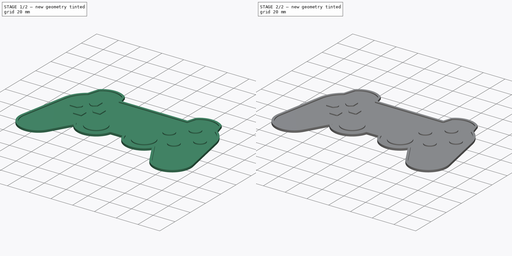
[diagram: build sequence overview — one tinted view per stage of 2, left to right]
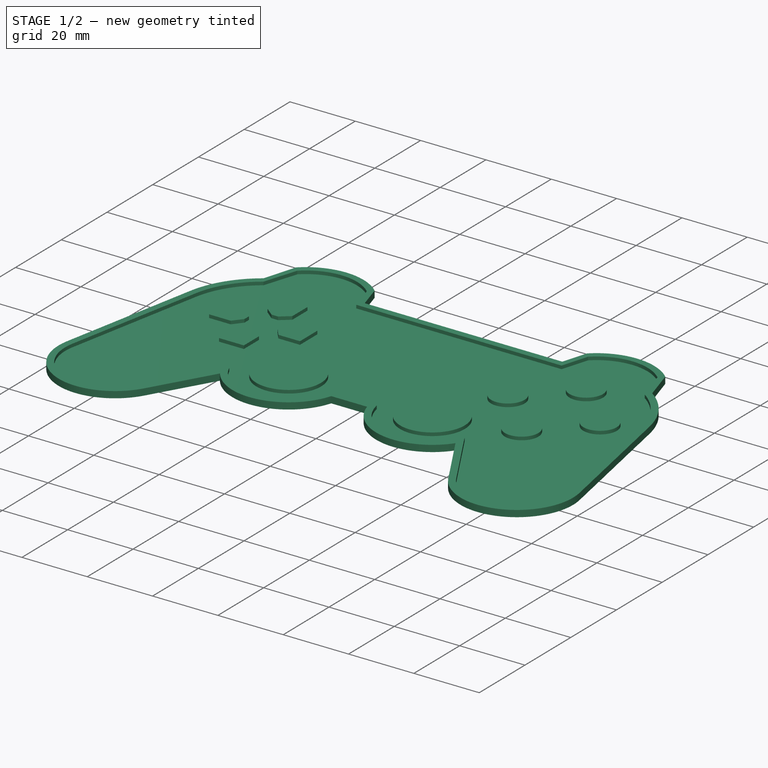
[diagram: stage 1 of 2 — iso view after this stage's code; geometry added in this stage tinted green]
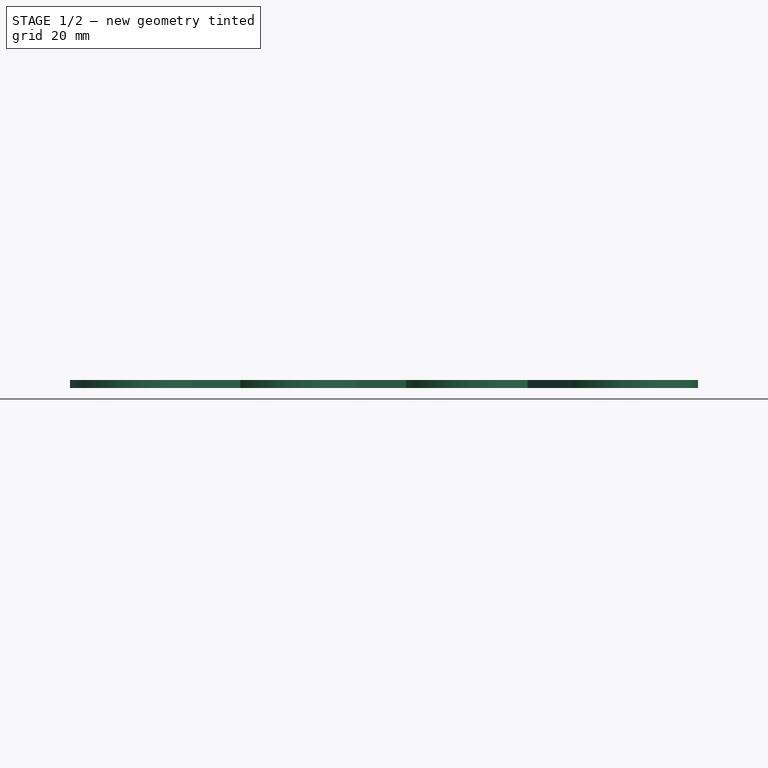
[diagram: stage 1 of 2 — front view after this stage's code; geometry added in this stage tinted green]
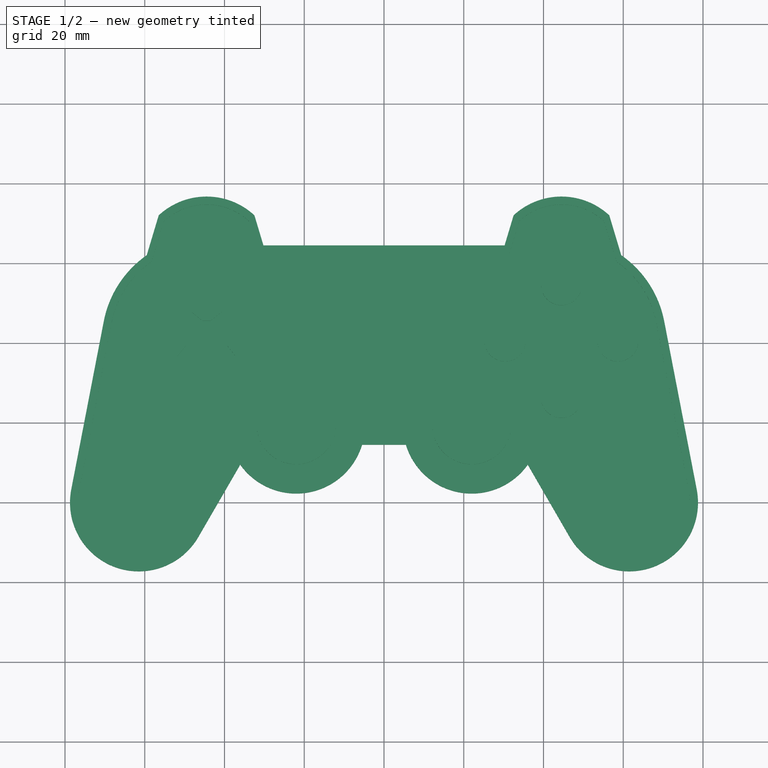
[diagram: stage 1 of 2 — top view after this stage's code; geometry added in this stage tinted green]
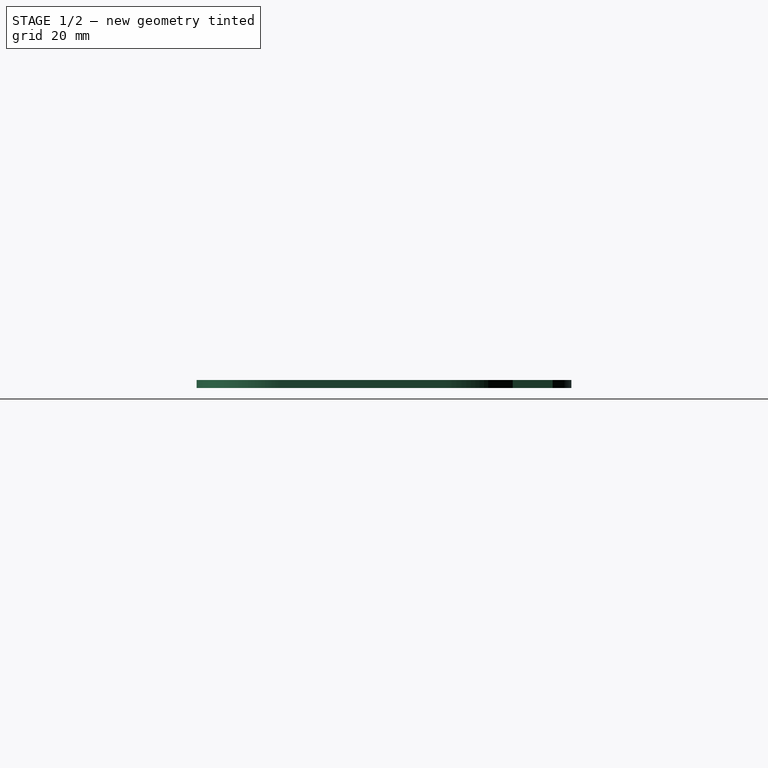
[diagram: stage 1 of 2 — right view after this stage's code; geometry added in this stage tinted green]
FCSTD DOCUMENT  (FreeCAD 0.20R29177 +426 (Git))
Label: DualShock Icon
License: All rights reserved
LicenseURL: http://en.wikipedia.org/wiki/All_rights_reserved
objects: Sketcher::SketchObject×2, PartDesign::Pad×2, PartDesign::Fillet×1, PartDesign::Body×1
note: 9 computed .brp shape members not serialized (recipe doc carries the construction recipe); baked Part::Feature solids carry a one-line shape summary decoded from their .brp

FEATURE [Sketcher::SketchObject] Sketch
  FullyConstrained = true
  MapMode = 5
  Support = -> [XY_Plane]
  sketch-geometry (42):
    g0: Circle CenterX=-61.5 CenterY=0 CenterZ=0 NormalX=0 NormalY=0 NormalZ=1 AngleXU=0 Radius=17.25
    g1: Circle CenterX=61.5 CenterY=0 CenterZ=0 NormalX=0 NormalY=0 NormalZ=1 AngleXU=0 Radius=17.25
    g2: Circle CenterX=44.5 CenterY=40.5093 CenterZ=0 NormalX=0 NormalY=0 NormalZ=1 AngleXU=0 Radius=26.25
    g3: Circle CenterX=-44.5 CenterY=40.5093 CenterZ=0 NormalX=0 NormalY=0 NormalZ=1 AngleXU=0 Radius=26.25
    g4: LineSegment StartX=70.2726 StartY=45.4929 StartZ=0 EndX=78.4363 EndY=3.27496 EndZ=0
    g5: LineSegment StartX=-70.2726 StartY=45.4929 StartZ=0 EndX=-78.4363 EndY=3.27497 EndZ=0
    g6: Circle CenterX=-22 CenterY=19.5093 CenterZ=0 NormalX=0 NormalY=0 NormalZ=1 AngleXU=0 Radius=17.25
    g7: Circle CenterX=22 CenterY=19.5093 CenterZ=0 NormalX=0 NormalY=0 NormalZ=1 AngleXU=0 Radius=17.25
    g8: LineSegment StartX=-22 StartY=19.5093 StartZ=0 EndX=22 EndY=19.5093 EndZ=0
    g9: LineSegment StartX=-44.5 StartY=40.5093 StartZ=0 EndX=44.5 EndY=40.5093 EndZ=0
    g10: LineSegment StartX=-22 StartY=19.5093 StartZ=0 EndX=-22 EndY=40.5093 EndZ=0
    g11: LineSegment StartX=0 StartY=64.5093 StartZ=0 EndX=0 EndY=40.5093 EndZ=0
    g12: LineSegment StartX=36.0557 StartY=9.50925 StartZ=0 EndX=46.5737 EndY=-8.64693 EndZ=0
    g13: LineSegment StartX=-46.5737 StartY=-8.64693 StartZ=0 EndX=-36.0557 EndY=9.50925 EndZ=0
    g14: LineSegment StartX=-59.5 StartY=62.0514 StartZ=0 EndX=-29.5 EndY=62.0514 EndZ=0
    g15: LineSegment StartX=-29.5 StartY=62.0514 StartZ=0 EndX=-32.5 EndY=72.0514 EndZ=0
    g16: LineSegment StartX=-32.5 StartY=72.0514 StartZ=0 EndX=-56.5 EndY=72.0514 EndZ=0
    g17: LineSegment StartX=-56.5 StartY=72.0514 StartZ=0 EndX=-59.5 EndY=62.0514 EndZ=0
    g18: LineSegment StartX=29.5 StartY=62.0514 StartZ=0 EndX=59.5 EndY=62.0514 EndZ=0
    g19: LineSegment StartX=59.5 StartY=62.0514 StartZ=0 EndX=56.5 EndY=72.0514 EndZ=0
    g20: LineSegment StartX=56.5 StartY=72.0514 StartZ=0 EndX=32.5 EndY=72.0514 EndZ=0
    g21: LineSegment StartX=32.5 StartY=72.0514 StartZ=0 EndX=29.5 EndY=62.0514 EndZ=0
    g22: ArcOfCircle CenterX=-44.5 CenterY=40.5093 CenterZ=0 NormalX=0 NormalY=0 NormalZ=1 AngleXU=0 Radius=26.25 StartAngle=2.17904 EndAngle=2.95058
    g23: ArcOfCircle CenterX=44.5 CenterY=40.5093 CenterZ=0 NormalX=0 NormalY=0 NormalZ=1 AngleXU=0 Radius=26.25 StartAngle=0.191013 EndAngle=0.962551
    g24: ArcOfCircle CenterX=61.5 CenterY=0 CenterZ=0 NormalX=0 NormalY=0 NormalZ=1 AngleXU=0 Radius=17.25 StartAngle=3.66666 EndAngle=6.4742
    g25: ArcOfCircle CenterX=22 CenterY=19.5093 CenterZ=0 NormalX=0 NormalY=0 NormalZ=1 AngleXU=0 Radius=17.25 StartAngle=3.43567 EndAngle=5.66481
    g26: ArcOfCircle CenterX=-22 CenterY=19.5093 CenterZ=0 NormalX=0 NormalY=0 NormalZ=1 AngleXU=0 Radius=17.25 StartAngle=3.75997 EndAngle=5.98911
    g27: ArcOfCircle CenterX=-61.5 CenterY=0 CenterZ=0 NormalX=0 NormalY=0 NormalZ=1 AngleXU=0 Radius=17.25 StartAngle=2.95058 EndAngle=5.75812
    g28: LineSegment StartX=-44.5 StartY=66.7593 StartZ=0 EndX=-44.5 EndY=76.7593 EndZ=0
    g29: LineSegment StartX=44.5 StartY=66.7593 StartZ=0 EndX=44.5 EndY=76.7593 EndZ=0
    g30: ArcOfCircle CenterX=-44.5 CenterY=59.1118 CenterZ=0 NormalX=0 NormalY=0 NormalZ=1 AngleXU=0 Radius=17.6474 StartAngle=0.823053 EndAngle=2.31854
    g31: ArcOfCircle CenterX=44.5 CenterY=59.1118 CenterZ=0 NormalX=0 NormalY=0 NormalZ=1 AngleXU=0 Radius=17.6474 StartAngle=0.823053 EndAngle=2.31854
    g32: LineSegment StartX=-59.5 StartY=62.0514 StartZ=0 EndX=-56.5 EndY=72.0514 EndZ=0
    g33: LineSegment StartX=-32.5 StartY=72.0514 StartZ=0 EndX=-30.2374 EndY=64.5093 EndZ=0
    g34: LineSegment StartX=30.2374 StartY=64.5093 StartZ=0 EndX=32.5 EndY=72.0514 EndZ=0
    g35: LineSegment StartX=56.5 StartY=72.0514 StartZ=0 EndX=59.5 EndY=62.0514 EndZ=0
    g36: GeomPoint X=0 Y=40.5093 Z=0
    g37: GeomPoint X=44.5 Y=72.0514 Z=0
    g38: GeomPoint X=-44.5 Y=72.0514 Z=0
    g39: LineSegment StartX=-5.49053 StartY=14.5093 StartZ=0 EndX=5.49053 EndY=14.5093 EndZ=0
    g40: LineSegment StartX=-5.49053 StartY=14.5093 StartZ=0 EndX=-5.49053 EndY=40.5093 EndZ=0
    g41: LineSegment StartX=-30.2374 StartY=64.5093 StartZ=0 EndX=30.2374 EndY=64.5093 EndZ=0
  constraints (115):
    c: PointOnObject(g0,g-1)
    c: PointOnObject(g1,g-1)
    c: Diameter(g1) = 34.5
    c: Diameter(g2) = 52.5
    c: Equal(g1,g0)
    c: Equal(g3,g2)
    c: PointOnObject(g4,g2)
    c: Tangent(g4,g1)
    c: PointOnObject(g5,g3)
    c: Tangent(g0,g5,g5) = -1.5708
    c: Tangent(g2,g4,g4) = 1.5708
    c: Distance(g4) = 43
    c: DistanceX(g0,g3) = 17
    c: DistanceX(g2,g1) = 17
    c: Equal(g1,g7)
    c: Equal(g0,g6)
    c: DistanceX(g7,g2) = 22.5
    c: DistanceX(g3,g6) = 22.5
    c: DistanceX(g6,g7) = 44
    c: Coincident(g8,g6)
    c: Coincident(g8,g7)
    c: Horizontal(g8)
    c: Coincident(g9,g3)
    c: Coincident(g9,g2)
    c: Horizontal(g9)
    c: Coincident(g10,g6)
    c: PointOnObject(g10,g9)
    c: Vertical(g10)
    c: DistanceY(g10,g10) = 21
    c: PointOnObject(g11,g9)
    c: Vertical(g11)
    c: Tangent(g13,g0) = -1.5708
    c: Tangent(g12,g1) = -1.5708
    c: DistanceY(g12,g7) = 10
    c: Coincident(g14,g15)
    c: Coincident(g15,g16)
    c: Coincident(g16,g17)
    c: Coincident(g17,g14)
    c: Horizontal(g14)
    c: Horizontal(g16)
    c: Coincident(g18,g19)
    c: Coincident(g19,g20)
    c: Coincident(g20,g21)
    c: Coincident(g21,g18)
    c: Horizontal(g18)
    c: Horizontal(g20)
    c: Equal(g15,g21)
    c: Coincident(g22,g3)
    c: Coincident(g22,g5)
    c: Coincident(g22,g14)
    c: Coincident(g23,g18)
    c: Coincident(g23,g4)
    c: Coincident(g24,g1)
    c: Coincident(g24,g4)
    c: Coincident(g24,g12)
    c: Coincident(g25,g7)
    c: Coincident(g25,g12)
    c: Coincident(g26,g6)
    c: Coincident(g26,g13)
    c: Coincident(g27,g0)
    c: Coincident(g27,g13)
    c: Coincident(g27,g5)
    c: PointOnObject(g28,g3)
    c: PointOnObject(g29,g2)
    c: Vertical(g29)
    c: Vertical(g28,g22)
    c: Vertical(g28)
    c: DistanceY(g19,g19) = 10
    c: DistanceY(g29,g29) = 10
    c: Equal(g29,g28)
    c: Coincident(g30,g16)
    c: Coincident(g30,g15)
    c: PointOnObject(g28,g30)
    c: Coincident(g31,g20)
    c: Coincident(g31,g19)
    c: PointOnObject(g29,g31)
    c: Coincident(g32,g22)
    c: Coincident(g32,g30)
    c: Coincident(g33,g30)
    c: Coincident(g34,g31)
    c: Coincident(g35,g31)
    c: Coincident(g35,g23)
    c: Vertical(g36,g-1)
    c: Horizontal(g12,g13)
    c: DistanceY(g11,g11) = 24
    c: Equal(g14,g18)
    c: DistanceX(g16,g16) = 24
    c: DistanceX(g18,g18) = 30
    c: Equal(g16,g20)
    c: PointOnObject(g37,g29)
    c: PointOnObject(g38,g28)
    c: Symmetric(g30,g30,g38)
    c: Symmetric(g31,g31,g37)
    c: Horizontal(g39)
    c: Coincident(g39,g26)
    c: Coincident(g39,g25)
    c: PointOnObject(g26,g6)
    c: PointOnObject(g25,g7)
    c: Coincident(g40,g26)
    c: PointOnObject(g40,g9)
    c: Vertical(g40)
    c: DistanceY(g40,g40) = 26
    c: Horizontal(g41)
    c: Coincident(g41,g33)
    c: Coincident(g34,g41)
    c: PointOnObject(g33,g15)
    c: PointOnObject(g34,g21)
    c: PointOnObject(g11,g41)
    c: PointOnObject(g14,g3)
    c: PointOnObject(g18,g2)
    c: PointOnObject(g23,g2)
    c: Vertical(g29,g2)
    c: Symmetric(g22,g23,g36)
    c: Coincident(g11,g36)
    c: Equal(g5,g4)
FEATURE [PartDesign::Pad] Pad
  Direction = (0,0,1)
  Length = 1
  Length2 = 10
  Profile = -> Sketch
  ReferenceAxis = -> Sketch [N_Axis]
  Type = 0
FEATURE [Sketcher::SketchObject] Sketch001
  ExternalGeometry = -> [Pad]
  FullyConstrained = true
  MapMode = 5
  Placement = pos=(0,0,1) rot=(0,0,1;0rad)
  Support = -> [Pad]
  sketch-geometry (112):
    g0: ArcOfCircle CenterX=-44.5 CenterY=40.5093 CenterZ=0 NormalX=0 NormalY=0 NormalZ=1 AngleXU=0 Radius=26.25 StartAngle=2.17904 EndAngle=2.95058
    g1: ArcOfCircle CenterX=44.5 CenterY=40.5093 CenterZ=0 NormalX=0 NormalY=0 NormalZ=1 AngleXU=0 Radius=26.25 StartAngle=0.191013 EndAngle=0.962551
    g2: ArcOfCircle CenterX=-44.5 CenterY=59.1118 CenterZ=0 NormalX=0 NormalY=0 NormalZ=1 AngleXU=0 Radius=17.6474 StartAngle=0.823053 EndAngle=2.31854
    g3: ArcOfCircle CenterX=-22 CenterY=19.5093 CenterZ=0 NormalX=0 NormalY=0 NormalZ=1 AngleXU=0 Radius=17.25 StartAngle=3.75997 EndAngle=5.98911
    g4: ArcOfCircle CenterX=22 CenterY=19.5093 CenterZ=0 NormalX=0 NormalY=0 NormalZ=1 AngleXU=0 Radius=17.25 StartAngle=3.43567 EndAngle=5.66481
    g5: ArcOfCircle CenterX=-61.5 CenterY=3.6e-15 CenterZ=0 NormalX=0 NormalY=0 NormalZ=1 AngleXU=0 Radius=17.25 StartAngle=2.95058 EndAngle=5.75812
    g6: ArcOfCircle CenterX=61.5 CenterY=3.4e-15 CenterZ=0 NormalX=0 NormalY=0 NormalZ=1 AngleXU=0 Radius=17.25 StartAngle=3.66666 EndAngle=6.4742
    g7: ArcOfCircle CenterX=44.5 CenterY=59.1118 CenterZ=0 NormalX=0 NormalY=0 NormalZ=1 AngleXU=0 Radius=17.6474 StartAngle=0.823053 EndAngle=2.31854
    g8: ArcOfCircle CenterX=44.5 CenterY=59.1118 CenterZ=0 NormalX=0 NormalY=0 NormalZ=1 AngleXU=0 Radius=15.6474 StartAngle=0.823053 EndAngle=2.31854
    g9: ArcOfCircle CenterX=-44.5 CenterY=59.1118 CenterZ=0 NormalX=0 NormalY=0 NormalZ=1 AngleXU=0 Radius=15.6474 StartAngle=0.823053 EndAngle=2.31854
    g10: ArcOfCircle CenterX=-44.5 CenterY=40.5093 CenterZ=0 NormalX=0 NormalY=0 NormalZ=1 AngleXU=0 Radius=24.25 StartAngle=2.17904 EndAngle=2.95058
    g11: ArcOfCircle CenterX=-61.5 CenterY=-5.1e-15 CenterZ=0 NormalX=0 NormalY=0 NormalZ=1 AngleXU=0 Radius=15.25 StartAngle=2.95058 EndAngle=5.75812
    g12: ArcOfCircle CenterX=61.5 CenterY=-1.5e-15 CenterZ=0 NormalX=0 NormalY=0 NormalZ=1 AngleXU=0 Radius=15.25 StartAngle=3.66666 EndAngle=6.4742
    g13: ArcOfCircle CenterX=44.5 CenterY=40.5093 CenterZ=0 NormalX=0 NormalY=0 NormalZ=1 AngleXU=0 Radius=24.25 StartAngle=0.191013 EndAngle=0.962551
    g14: ArcOfCircle CenterX=22 CenterY=19.5093 CenterZ=0 NormalX=0 NormalY=0 NormalZ=1 AngleXU=0 Radius=15.25 StartAngle=3.43567 EndAngle=5.66481
    g15: ArcOfCircle CenterX=-22 CenterY=19.5093 CenterZ=0 NormalX=0 NormalY=0 NormalZ=1 AngleXU=0 Radius=15.25 StartAngle=3.75997 EndAngle=5.98911
    g16: LineSegment StartX=-78.4363 StartY=3.27497 StartZ=0 EndX=-76.4726 EndY=2.89526 EndZ=0
    g17: LineSegment StartX=-48.3043 StartY=-7.64438 StartZ=0 EndX=-46.5737 EndY=-8.64693 EndZ=0
    g18: LineSegment StartX=46.5737 StartY=-8.64693 StartZ=0 EndX=48.3043 EndY=-7.64438 EndZ=0
    g19: LineSegment StartX=76.4726 StartY=2.89526 StartZ=0 EndX=78.4363 EndY=3.27496 EndZ=0
    g20: LineSegment StartX=68.309 StartY=45.1132 StartZ=0 EndX=70.2726 EndY=45.4929 EndZ=0
    g21: LineSegment StartX=58.3571 StartY=60.4101 StartZ=0 EndX=59.5 EndY=62.0514 EndZ=0
    g22: LineSegment StartX=55.14 StartY=70.5849 StartZ=0 EndX=56.5 EndY=72.0514 EndZ=0
    g23: LineSegment StartX=32.5 StartY=72.0514 StartZ=0 EndX=33.86 EndY=70.5849 EndZ=0
    g24: LineSegment StartX=-33.86 StartY=70.5849 StartZ=0 EndX=-32.5 EndY=72.0514 EndZ=0
    g25: LineSegment StartX=-56.5 StartY=72.0514 StartZ=0 EndX=-55.14 EndY=70.5849 EndZ=0
    g26: LineSegment StartX=-59.5 StartY=62.0514 StartZ=0 EndX=-58.3571 EndY=60.4101 EndZ=0
    g27: LineSegment StartX=-70.2726 StartY=45.4929 StartZ=0 EndX=-68.309 EndY=45.1132 EndZ=0
    g28: LineSegment StartX=-36.0557 StartY=9.50925 StartZ=0 EndX=-34.426 EndY=10.6687 EndZ=0
    g29: LineSegment StartX=-7.40467 StartY=15.089 StartZ=0 EndX=-5.49053 EndY=14.5093 EndZ=0
    g30: LineSegment StartX=5.49053 StartY=14.5093 StartZ=0 EndX=7.40467 EndY=15.089 EndZ=0
    g31: LineSegment StartX=34.426 StartY=10.6687 StartZ=0 EndX=36.0557 EndY=9.50925 EndZ=0
    g32: LineSegment StartX=-46.5737 StartY=-8.64693 StartZ=0 EndX=-36.0557 EndY=9.50925 EndZ=0
    g33: LineSegment StartX=-5.49053 StartY=14.5093 StartZ=0 EndX=5.49053 EndY=14.5093 EndZ=0
    g34: LineSegment StartX=36.0557 StartY=9.50925 StartZ=0 EndX=46.5737 EndY=-8.64693 EndZ=0
    g35: LineSegment StartX=78.4363 StartY=3.27496 StartZ=0 EndX=70.2726 EndY=45.4929 EndZ=0
    g36: LineSegment StartX=59.5 StartY=62.0514 StartZ=0 EndX=56.5 EndY=72.0514 EndZ=0
    g37: LineSegment StartX=55.14 StartY=70.5849 StartZ=0 EndX=58.3571 EndY=60.4101 EndZ=0
    g38: LineSegment StartX=32.5 StartY=72.0514 StartZ=0 EndX=30.2374 EndY=64.5093 EndZ=0
    g39: LineSegment StartX=30.2374 StartY=64.5093 StartZ=0 EndX=-30.2374 EndY=64.5093 EndZ=0
    g40: LineSegment StartX=-30.2374 StartY=64.5093 StartZ=0 EndX=-32.5 EndY=72.0514 EndZ=0
    g41: LineSegment StartX=-56.5 StartY=72.0514 StartZ=0 EndX=-59.5 EndY=62.0514 EndZ=0
    g42: LineSegment StartX=-58.3571 StartY=60.4101 StartZ=0 EndX=-55.14 EndY=70.5849 EndZ=0
    g43: LineSegment StartX=-70.2726 StartY=45.4929 StartZ=0 EndX=-78.4363 EndY=3.27497 EndZ=0
    g44: LineSegment StartX=-76.4726 StartY=2.89526 StartZ=0 EndX=-68.309 EndY=45.1132 EndZ=0
    g45: LineSegment StartX=-48.3043 StartY=-7.64438 StartZ=0 EndX=-36.0327 EndY=13.5388 EndZ=0
    g46: ArcOfCircle CenterX=-22 CenterY=19.5093 CenterZ=0 NormalX=0 NormalY=0 NormalZ=1 AngleXU=0 Radius=15.25 StartAngle=3.54386 EndAngle=3.75997
    g47: LineSegment StartX=-7.04799 StartY=16.5093 StartZ=0 EndX=7.04799 EndY=16.5093 EndZ=0
    g48: ArcOfCircle CenterX=-22 CenterY=19.5093 CenterZ=0 NormalX=0 NormalY=0 NormalZ=1 AngleXU=0 Radius=15.25 StartAngle=5.98911 EndAngle=6.08517
    g49: ArcOfCircle CenterX=22 CenterY=19.5093 CenterZ=0 NormalX=0 NormalY=0 NormalZ=1 AngleXU=0 Radius=15.25 StartAngle=3.33961 EndAngle=3.43567
    g50: LineSegment StartX=48.3043 StartY=-7.64438 StartZ=0 EndX=36.0327 EndY=13.5388 EndZ=0
    g51: ArcOfCircle CenterX=22 CenterY=19.5093 CenterZ=0 NormalX=0 NormalY=0 NormalZ=1 AngleXU=0 Radius=15.25 StartAngle=5.66481 EndAngle=5.88092
    g52: LineSegment StartX=76.4726 StartY=2.89526 StartZ=0 EndX=68.309 EndY=45.1132 EndZ=0
    g53: LineSegment StartX=-31.4373 StartY=62.5093 StartZ=0 EndX=31.4373 EndY=62.5093 EndZ=0
    g54: LineSegment StartX=31.4373 StartY=62.5093 StartZ=0 EndX=33.86 EndY=70.5849 EndZ=0
    g55: LineSegment StartX=-31.4373 StartY=62.5093 StartZ=0 EndX=-33.86 EndY=70.5849 EndZ=0
    g56: Circle CenterX=44.5 CenterY=40.5093 CenterZ=0 NormalX=0 NormalY=0 NormalZ=1 AngleXU=0 Radius=26.25
    g57: LineSegment StartX=25.25 StartY=40.5093 StartZ=0 EndX=18.25 EndY=40.5093 EndZ=0
    g58: LineSegment StartX=25.25 StartY=40.5093 StartZ=0 EndX=44.5 EndY=40.5093 EndZ=0
    g59: Circle CenterX=30.375 CenterY=40.5093 CenterZ=0 NormalX=0 NormalY=0 NormalZ=1 AngleXU=0 Radius=5.125
    g60: LineSegment StartX=44.5 StartY=40.5093 StartZ=0 EndX=44.5 EndY=59.7593 EndZ=0
    g61: LineSegment StartX=44.5 StartY=59.7593 StartZ=0 EndX=44.5 EndY=66.7593 EndZ=0
    g62: LineSegment StartX=44.5 StartY=40.5093 StartZ=0 EndX=63.75 EndY=40.5093 EndZ=0
    g63: LineSegment StartX=63.75 StartY=40.5093 StartZ=0 EndX=70.75 EndY=40.5093 EndZ=0
    g64: LineSegment StartX=44.5 StartY=40.5093 StartZ=0 EndX=44.5 EndY=21.2593 EndZ=0
    g65: LineSegment StartX=44.5 StartY=21.2593 StartZ=0 EndX=44.5 EndY=14.2593 EndZ=0
    g66: Circle CenterX=44.5 CenterY=54.6343 CenterZ=0 NormalX=0 NormalY=0 NormalZ=1 AngleXU=0 Radius=5.125
    g67: Circle CenterX=58.625 CenterY=40.5093 CenterZ=0 NormalX=0 NormalY=0 NormalZ=1 AngleXU=0 Radius=5.125
    g68: Circle CenterX=44.5 CenterY=26.3843 CenterZ=0 NormalX=0 NormalY=0 NormalZ=1 AngleXU=0 Radius=5.125
    g69: Circle CenterX=-44.5 CenterY=40.5093 CenterZ=0 NormalX=0 NormalY=0 NormalZ=1 AngleXU=0 Radius=26.25
    g70: LineSegment StartX=-44.5 StartY=40.5093 StartZ=0 EndX=-30.6 EndY=40.5093 EndZ=0
    g71: LineSegment StartX=-30.6 StartY=40.5093 StartZ=0 EndX=-18.25 EndY=40.5093 EndZ=0
    g72: LineSegment StartX=-44.5 StartY=40.5093 StartZ=0 EndX=-44.5 EndY=54.4093 EndZ=0
    g73: LineSegment StartX=-44.5 StartY=54.4093 StartZ=0 EndX=-44.5 EndY=66.7593 EndZ=0
    g74: LineSegment StartX=-44.5 StartY=40.5093 StartZ=0 EndX=-58.4 EndY=40.5093 EndZ=0
    g75: LineSegment StartX=-58.4 StartY=40.5093 StartZ=0 EndX=-70.75 EndY=40.5093 EndZ=0
    g76: LineSegment StartX=-44.5 StartY=40.5093 StartZ=0 EndX=-44.5 EndY=26.6093 EndZ=0
    g77: LineSegment StartX=-44.5 StartY=26.6093 StartZ=0 EndX=-44.5 EndY=14.2593 EndZ=0
    g78: LineSegment StartX=-58.4 StartY=36.7093 StartZ=0 EndX=-51.8 EndY=36.7093 EndZ=0
    g79: LineSegment StartX=-51.8 StartY=36.7093 StartZ=0 EndX=-51.8 EndY=44.3093 EndZ=0
    g80: LineSegment StartX=-51.8 StartY=44.3093 StartZ=0 EndX=-58.4 EndY=44.3093 EndZ=0
    g81: LineSegment StartX=-58.4 StartY=44.3093 StartZ=0 EndX=-58.4 EndY=36.7093 EndZ=0
    g82: LineSegment StartX=-40.7 StartY=26.6093 StartZ=0 EndX=-48.3 EndY=26.6093 EndZ=0
    g83: LineSegment StartX=-48.3 StartY=26.6093 StartZ=0 EndX=-48.3 EndY=33.2093 EndZ=0
    g84: LineSegment StartX=-48.3 StartY=33.2093 StartZ=0 EndX=-40.7 EndY=33.2093 EndZ=0
    g85: LineSegment StartX=-40.7 StartY=33.2093 StartZ=0 EndX=-40.7 EndY=26.6093 EndZ=0
    g86: LineSegment StartX=-30.6 StartY=44.3093 StartZ=0 EndX=-37.2 EndY=44.3093 EndZ=0
    g87: LineSegment StartX=-37.2 StartY=44.3093 StartZ=0 EndX=-37.2 EndY=36.7093 EndZ=0
    g88: LineSegment StartX=-37.2 StartY=36.7093 StartZ=0 EndX=-30.6 EndY=36.7093 EndZ=0
    g89: LineSegment StartX=-30.6 StartY=36.7093 StartZ=0 EndX=-30.6 EndY=44.3093 EndZ=0
    g90: LineSegment StartX=-48.3 StartY=54.4093 StartZ=0 EndX=-40.7 EndY=54.4093 EndZ=0
    g91: LineSegment StartX=-40.7 StartY=54.4093 StartZ=0 EndX=-40.7 EndY=47.8093 EndZ=0
    g92: LineSegment StartX=-40.7 StartY=47.8093 StartZ=0 EndX=-48.3 EndY=47.8093 EndZ=0
    g93: LineSegment StartX=-48.3 StartY=47.8093 StartZ=0 EndX=-48.3 EndY=54.4093 EndZ=0
    g94: LineSegment StartX=-51.8 StartY=44.3093 StartZ=0 EndX=-49.55 EndY=41.5093 EndZ=0
    g95: LineSegment StartX=-49.55 StartY=41.5093 StartZ=0 EndX=-49.55 EndY=39.5093 EndZ=0
    g96: LineSegment StartX=-49.55 StartY=39.5093 StartZ=0 EndX=-51.8 EndY=36.7093 EndZ=0
    g97: LineSegment StartX=-49.55 StartY=41.5093 StartZ=0 EndX=-58.4 EndY=41.5093 EndZ=0
    g98: LineSegment StartX=-48.3 StartY=33.2093 StartZ=0 EndX=-45.5 EndY=35.4593 EndZ=0
    g99: LineSegment StartX=-45.5 StartY=35.4593 StartZ=0 EndX=-43.5 EndY=35.4593 EndZ=0
    g100: LineSegment StartX=-43.5 StartY=35.4593 StartZ=0 EndX=-40.7 EndY=33.2093 EndZ=0
    g101: LineSegment StartX=-37.2 StartY=36.7093 StartZ=0 EndX=-39.45 EndY=39.5093 EndZ=0
    g102: LineSegment StartX=-39.45 StartY=39.5093 StartZ=0 EndX=-39.45 EndY=41.5093 EndZ=0
    g103: LineSegment StartX=-39.45 StartY=41.5093 StartZ=0 EndX=-37.2 EndY=44.3093 EndZ=0
    g104: LineSegment StartX=-48.3 StartY=47.8093 StartZ=0 EndX=-45.5 EndY=45.5593 EndZ=0
    g105: LineSegment StartX=-45.5 StartY=45.5593 StartZ=0 EndX=-43.5 EndY=45.5593 EndZ=0
    g106: LineSegment StartX=-43.5 StartY=45.5593 StartZ=0 EndX=-40.7 EndY=47.8093 EndZ=0
    g107: LineSegment StartX=-43.5 StartY=45.5593 StartZ=0 EndX=-43.5 EndY=54.4093 EndZ=0
    g108: LineSegment StartX=-39.45 StartY=41.5093 StartZ=0 EndX=-30.6 EndY=41.5093 EndZ=0
    g109: LineSegment StartX=-43.5 StartY=35.4593 StartZ=0 EndX=-43.5 EndY=26.6093 EndZ=0
    g110: Circle CenterX=-22 CenterY=19.5093 CenterZ=0 NormalX=0 NormalY=0 NormalZ=1 AngleXU=0 Radius=9.9
    g111: Circle CenterX=22 CenterY=19.5093 CenterZ=0 NormalX=0 NormalY=0 NormalZ=1 AngleXU=0 Radius=9.9
  constraints (300):
    c: Coincident(g0,g-3)
    c: Coincident(g1,g-4)
    c: Coincident(g2,g-10)
    c: Coincident(g3,g-6)
    c: Coincident(g4,g-5)
    c: Coincident(g5,g-7)
    c: Coincident(g5,g-7)
    c: Tangent(g5,g-7)
    c: Coincident(g6,g-8)
    c: Coincident(g6,g-8)
    c: Tangent(g6,g-8)
    c: Coincident(g7,g-9)
    c: Coincident(g16,g5)
    c: Coincident(g16,g11)
    c: Coincident(g17,g11)
    c: Coincident(g17,g5)
    c: Coincident(g18,g6)
    c: Coincident(g18,g12)
    c: Coincident(g19,g12)
    c: Coincident(g19,g6)
    c: Coincident(g20,g13)
    c: Coincident(g20,g1)
    c: Coincident(g21,g13)
    c: Coincident(g22,g8)
    c: Coincident(g22,g7)
    c: Coincident(g23,g8)
    c: Coincident(g24,g9)
    c: Coincident(g24,g2)
    c: Coincident(g25,g9)
    c: Coincident(g26,g0)
    c: Coincident(g26,g10)
    c: Coincident(g27,g10)
    c: Perpendicular(g5,g16)
    c: Perpendicular(g5,g17)
    c: Perpendicular(g11,g17)
    c: Perpendicular(g11,g16)
    c: Perpendicular(g12,g18)
    c: Perpendicular(g12,g19)
    c: Perpendicular(g6,g19)
    c: Perpendicular(g6,g18)
    c: Perpendicular(g13,g21)
    c: Perpendicular(g1,g21)
    c: Perpendicular(g13,g20)
    c: Perpendicular(g1,g20)
    c: Perpendicular(g7,g22)
    c: Perpendicular(g8,g22)
    c: Perpendicular(g8,g23)
    c: Perpendicular(g7,g23)
    c: Perpendicular(g9,g24)
    c: Perpendicular(g2,g24)
    c: Perpendicular(g9,g25)
    c: Perpendicular(g2,g25)
    c: Perpendicular(g10,g26)
    c: Perpendicular(g0,g26)
    c: Perpendicular(g10,g27)
    c: Perpendicular(g0,g27)
    c: Coincident(g28,g15)
    c: Coincident(g29,g15)
    c: Coincident(g29,g3)
    c: Coincident(g30,g14)
    c: Tangent(g3,g-6) = -1.5708
    c: Coincident(g31,g14)
    c: Coincident(g31,g4)
    c: Perpendicular(g4,g30)
    c: Perpendicular(g14,g30)
    c: Perpendicular(g14,g31)
    c: Perpendicular(g4,g31)
    c: Tangent(g4,g-5) = -1.5708
    c: Coincident(g30,g4)
    c: Perpendicular(g3,g28)
    c: Perpendicular(g3,g29)
    c: Coincident(g28,g3)
    c: Perpendicular(g15,g28)
    c: Perpendicular(g15,g29)
    c: Equal(g26,g16)
    c: Equal(g16,g28)
    c: Equal(g29,g30)
    c: Equal(g31,g18)
    c: Equal(g19,g20)
    c: Equal(g21,g22)
    c: Tangent(g2,g-10) = -1.5708
    c: Distance(g24) = 2
    c: Coincident(g25,g2)
    c: Equal(g25,g27)
    c: Coincident(g32,g5)
    c: Coincident(g32,g3)
    c: Tangent(g1,g-4) = -1.5708
    c: Coincident(g21,g1)
    c: Coincident(g33,g3)
    c: Coincident(g33,g4)
    c: Coincident(g34,g4)
    c: Coincident(g34,g6)
    c: Coincident(g35,g6)
    c: Coincident(g35,g1)
    c: Coincident(g36,g1)
    c: Coincident(g36,g7)
    c: Coincident(g37,g8)
    c: Coincident(g37,g13)
    c: Coincident(g38,g-11)
    c: Coincident(g39,g38)
    c: Coincident(g39,g-11)
    c: Coincident(g40,g39)
    c: Coincident(g40,g2)
    c: Coincident(g41,g2)
    c: Coincident(g41,g0)
    c: Coincident(g42,g10)
    c: Coincident(g42,g9)
    c: Coincident(g43,g5)
    c: Coincident(g44,g11)
    c: Coincident(g44,g10)
    c: Coincident(g45,g11)
    c: Parallel(g45,g32)
    c: Coincident(g46,g3)
    c: Coincident(g46,g45)
    c: Coincident(g46,g15)
    c: Horizontal(g47)
    c: DistanceY(g4,g47) = 2
    c: Coincident(g48,g3)
    c: Coincident(g48,g15)
    c: Coincident(g48,g47)
    c: Coincident(g49,g4)
    c: Coincident(g49,g47)
    c: Coincident(g49,g14)
    c: Coincident(g50,g12)
    c: Parallel(g34,g50)
    c: Coincident(g51,g4)
    c: Coincident(g51,g14)
    c: Coincident(g51,g50)
    c: Coincident(g52,g12)
    c: Coincident(g52,g13)
    c: Horizontal(g53)
    c: Coincident(g54,g53)
    c: Coincident(g54,g8)
    c: Coincident(g55,g53)
    c: Coincident(g55,g9)
    c: Parallel(g55,g40)
    c: Parallel(g38,g54)
    c: DistanceY(g53,g38) = 2
    c: Coincident(g56,g1)
    c: PointOnObject(g1,g56)
    c: PointOnObject(g57,g56)
    c: Horizontal(g57)
    c: Coincident(g58,g57)
    c: Coincident(g58,g1)
    c: Horizontal(g58)
    c: Distance(g57) = 7
    c: PointOnObject(g59,g58)
    c: PointOnObject(g57,g59)
    c: Diameter(g59) = 10.25
    c: Coincident(g60,g1)
    c: Vertical(g60)
    c: Coincident(g61,g60)
    c: PointOnObject(g61,g56)
    c: Vertical(g61)
    c: Coincident(g62,g1)
    c: Horizontal(g62)
    c: Coincident(g63,g62)
    c: PointOnObject(g63,g56)
    c: Horizontal(g63)
    c: Coincident(g64,g1)
    c: Vertical(g64)
    c: Coincident(g65,g64)
    c: PointOnObject(g65,g56)
    c: Vertical(g65)
    c: Equal(g57,g65)
    c: Equal(g65,g63)
    c: Equal(g63,g61)
    c: PointOnObject(g66,g60)
    c: PointOnObject(g60,g66)
    c: PointOnObject(g67,g62)
    c: PointOnObject(g62,g67)
    c: PointOnObject(g68,g64)
    c: PointOnObject(g64,g68)
    c: Equal(g59,g68)
    c: Equal(g68,g67)
    c: Equal(g66,g67)
    c: Tangent(g7,g-9) = -1.5708
    c: Coincident(g38,g7)
    c: Coincident(g23,g7)
    c: Coincident(g69,g0)
    c: PointOnObject(g0,g69)
    c: Coincident(g70,g0)
    c: Horizontal(g70)
    c: Coincident(g71,g70)
    c: PointOnObject(g71,g69)
    c: Horizontal(g71)
    c: Coincident(g72,g0)
    c: Vertical(g72)
    c: Coincident(g73,g72)
    c: PointOnObject(g73,g69)
    c: Vertical(g73)
    c: Coincident(g74,g0)
    c: Horizontal(g74)
    c: Coincident(g75,g74)
    c: PointOnObject(g75,g69)
    c: Horizontal(g75)
    c: Coincident(g76,g0)
    c: Vertical(g76)
    c: Coincident(g77,g76)
    c: PointOnObject(g77,g69)
    c: Vertical(g77)
    c: Distance(g71) = 12.35
    c: Equal(g73,g71)
    c: Equal(g71,g77)
    c: Equal(g77,g75)
    c: Coincident(g78,g79)
    c: Coincident(g79,g80)
    c: Coincident(g80,g81)
    c: Coincident(g81,g78)
    c: Horizontal(g78)
    c: Horizontal(g80)
    c: Vertical(g79)
    c: Vertical(g81)
    c: Coincident(g82,g83)
    c: Coincident(g83,g84)
    c: Coincident(g84,g85)
    c: Coincident(g85,g82)
    c: Horizontal(g82)
    c: Horizontal(g84)
    c: Vertical(g83)
    c: Vertical(g85)
    c: Coincident(g86,g87)
    c: Coincident(g87,g88)
    c: Coincident(g88,g89)
    c: Coincident(g89,g86)
    c: Horizontal(g86)
    c: Horizontal(g88)
    c: Vertical(g87)
    c: Vertical(g89)
    c: Coincident(g90,g91)
    c: Coincident(g91,g92)
    c: Coincident(g92,g93)
    c: Coincident(g93,g90)
    c: Horizontal(g90)
    c: Horizontal(g92)
    c: Vertical(g91)
    c: Vertical(g93)
    c: Symmetric(g86,g88,g70)
    c: Symmetric(g82,g82,g76)
    c: Symmetric(g80,g78,g74)
    c: Distance(g89) = 7.6
    c: Distance(g86) = 6.6
    c: Equal(g86,g91)
    c: Equal(g78,g93)
    c: Equal(g80,g85)
    c: Tangent(g0,g-3) = -1.5708
    c: Coincident(g0,g27)
    c: Coincident(g43,g0)
    c: Equal(g89,g82)
    c: Equal(g82,g81)
    c: Equal(g81,g90)
    c: Coincident(g94,g80)
    c: Coincident(g95,g94)
    c: Vertical(g95)
    c: Coincident(g96,g95)
    c: Coincident(g96,g78)
    c: Coincident(g97,g94)
    c: PointOnObject(g97,g81)
    c: Horizontal(g97)
    c: Distance(g97) = 8.85
    c: Distance(g95) = 2
    c: Equal(g94,g96)
    c: Coincident(g98,g83)
    c: Coincident(g99,g98)
    c: Horizontal(g99)
    c: Coincident(g100,g99)
    c: Coincident(g100,g85)
    c: Coincident(g101,g88)
    c: Coincident(g102,g101)
    c: Vertical(g102)
    c: Coincident(g103,g102)
    c: Coincident(g103,g86)
    c: Coincident(g104,g93)
    c: Coincident(g105,g104)
    c: Horizontal(g105)
    c: Coincident(g106,g105)
    c: Coincident(g106,g91)
    c: Coincident(g107,g105)
    c: PointOnObject(g107,g90)
    c: Coincident(g108,g102)
    c: PointOnObject(g108,g89)
    c: Horizontal(g108)
    c: Coincident(g109,g99)
    c: PointOnObject(g109,g82)
    c: Vertical(g109)
    c: Vertical(g107)
    c: Equal(g97,g109)
    c: Equal(g109,g108)
    c: Equal(g108,g107)
    c: Equal(g106,g104)
    c: Equal(g103,g101)
    c: Equal(g98,g100)
    c: Equal(g99,g95)
    c: Equal(g99,g102)
    c: Equal(g102,g105)
    c: Symmetric(g90,g90,g72)
    c: Coincident(g110,g3)
    c: Coincident(g111,g4)
    c: Diameter(g111) = 19.8
    c: Equal(g111,g110)
FEATURE [PartDesign::Pad] Pad001
  BaseFeature = -> Pad
  Direction = (0,0,1)
  Length = 1
  Length2 = 10
  Profile = -> Sketch001
  ReferenceAxis = -> Sketch001 [N_Axis]
  Type = 0
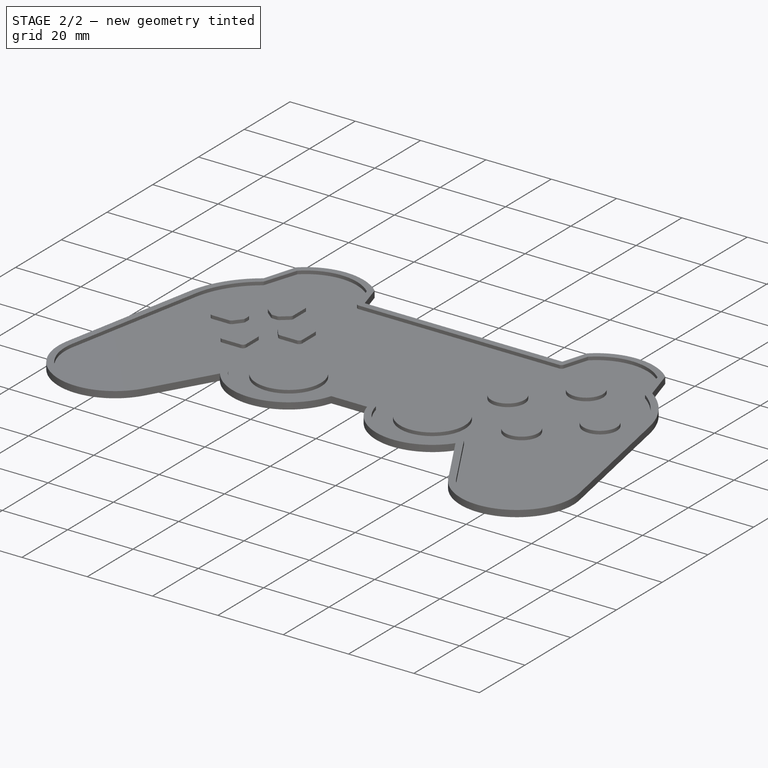
[diagram: stage 2 of 2 — iso view after this stage's code; geometry added in this stage tinted green]
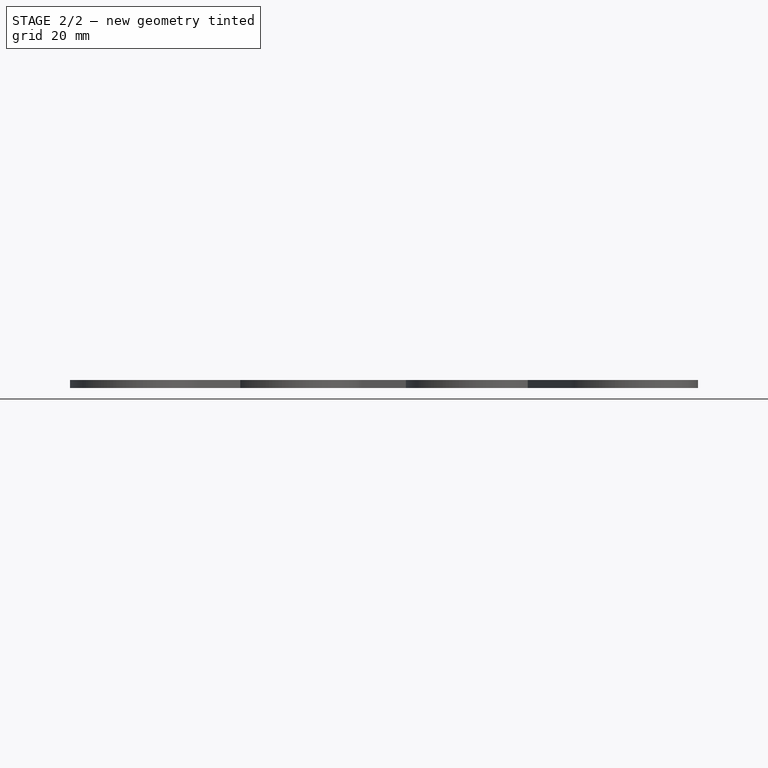
[diagram: stage 2 of 2 — front view after this stage's code; geometry added in this stage tinted green]
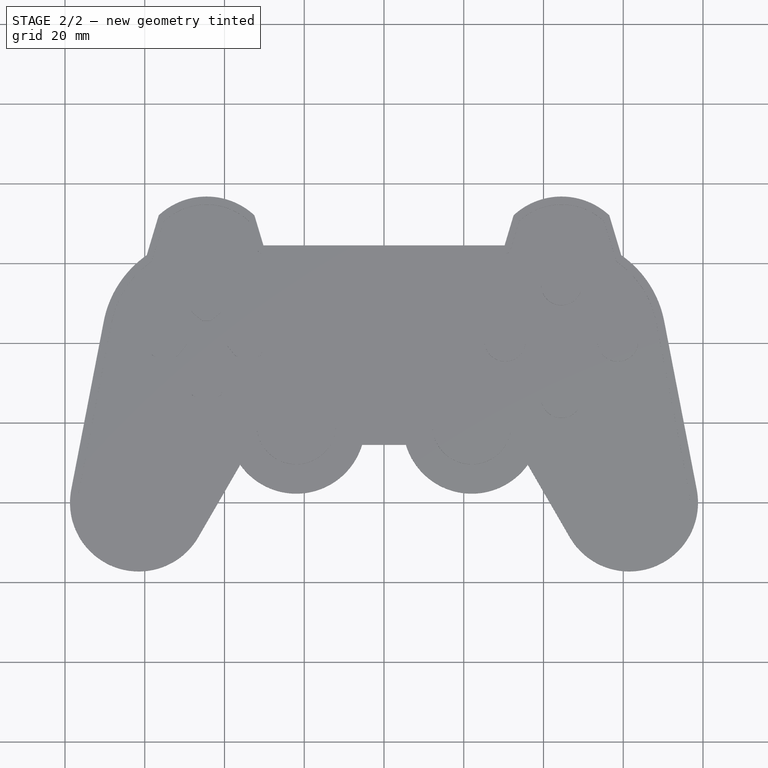
[diagram: stage 2 of 2 — top view after this stage's code; geometry added in this stage tinted green]
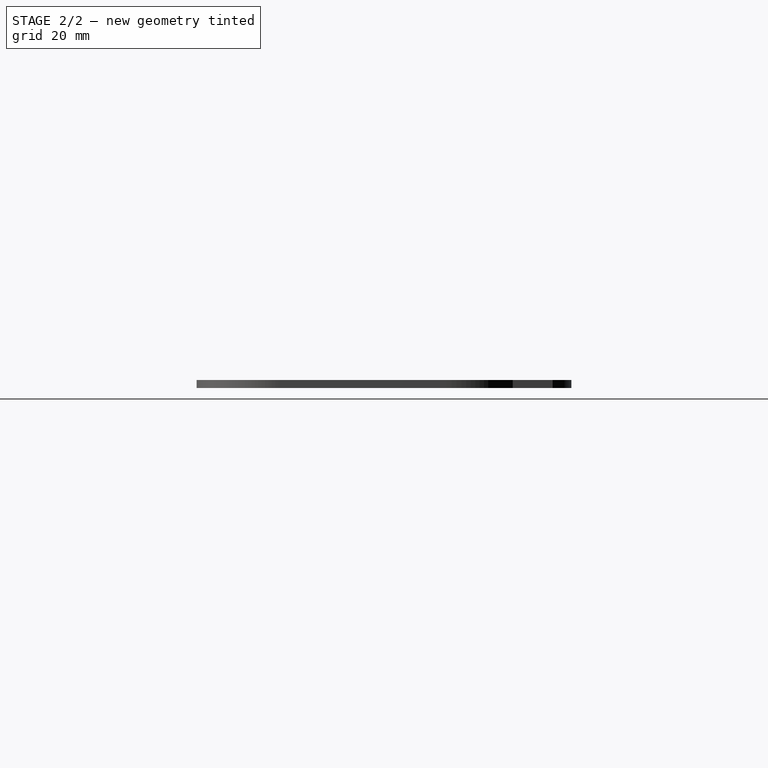
[diagram: stage 2 of 2 — right view after this stage's code; geometry added in this stage tinted green]
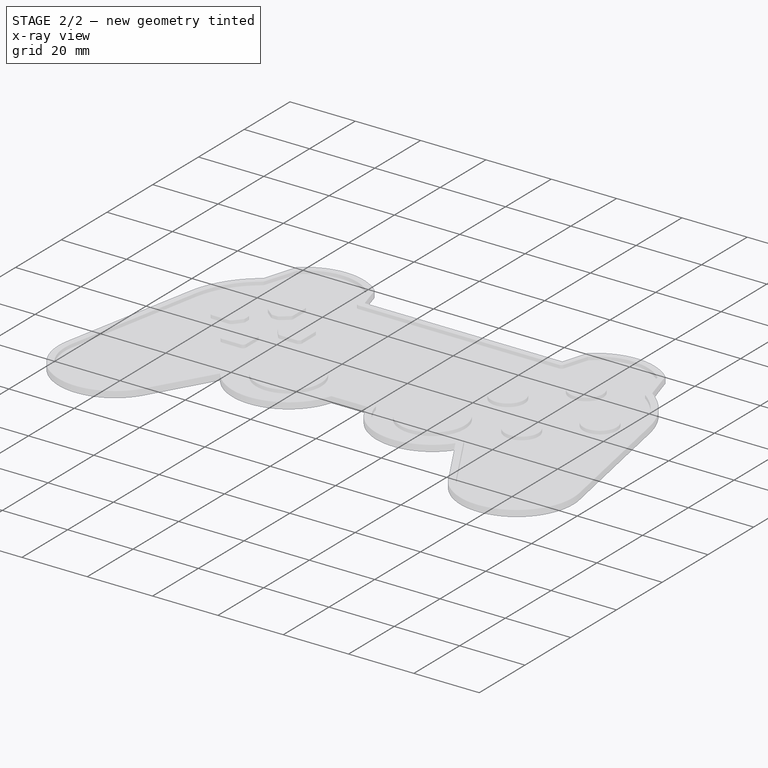
[diagram: stage 2 of 2 — x-ray composite at the iso view; earlier geometry ghosted, this stage's added geometry solid]
FEATURE [PartDesign::Fillet] Fillet
  Base = -> Pad001 [Edge140,Edge202,Edge208,Edge206,Edge218,Edge126,Edge226,Edge232,Edge230,Edge194,Edge146,Edge154,Edge124,Edge118,Edge148,Edge132,Edge229,Edge238,Edge222,Edge220,Edge217,Edge210,Edge200,Edge205,Edge214,Edge212,Edge198,Edge196,Edge193,Edge234,Edge224,Edge236]
  BaseFeature = -> Pad001
  Radius = 1
  Refine = true
  SupportTransform = false
  UseAllEdges = false
FEATURE [PartDesign::Body] Body  label="Icon"
  Group = -> [Sketch,Pad,Sketch001,Pad001,Fillet]
  Origin = -> Origin
  Tip = -> Fillet
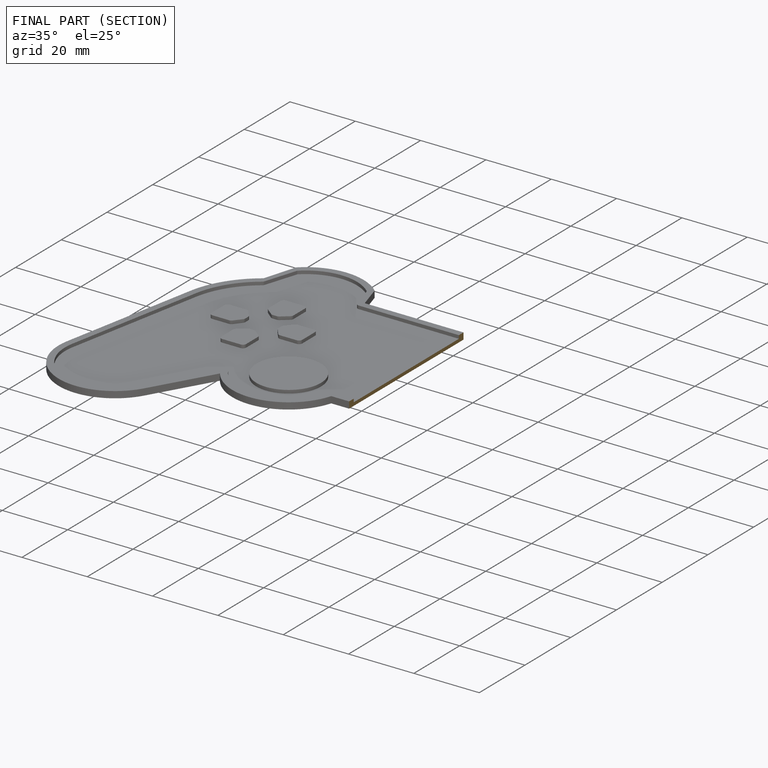
[diagram: finished part — half-section view (interior)]
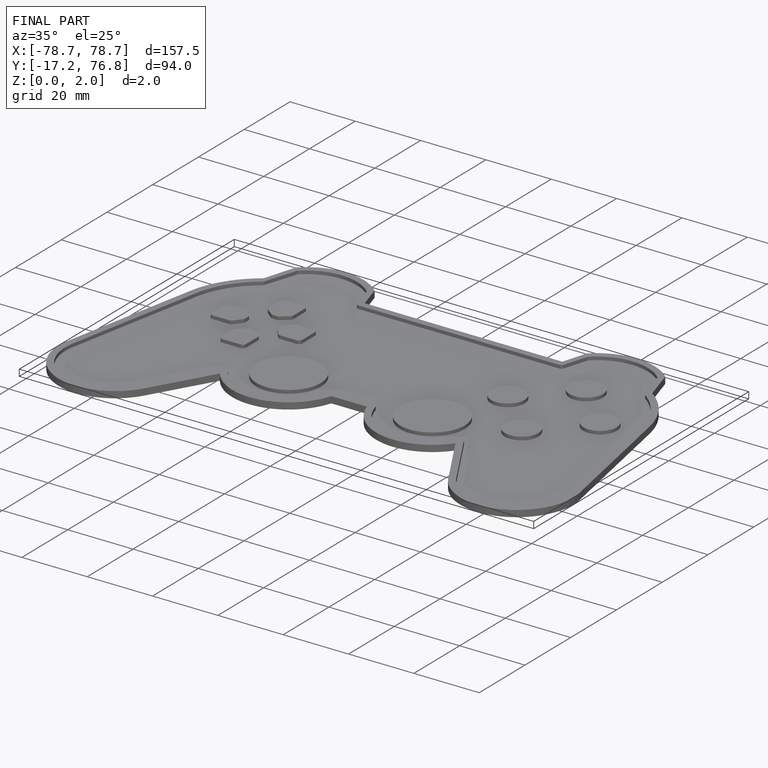
[diagram: finished part — iso view with bounding-box wireframe]
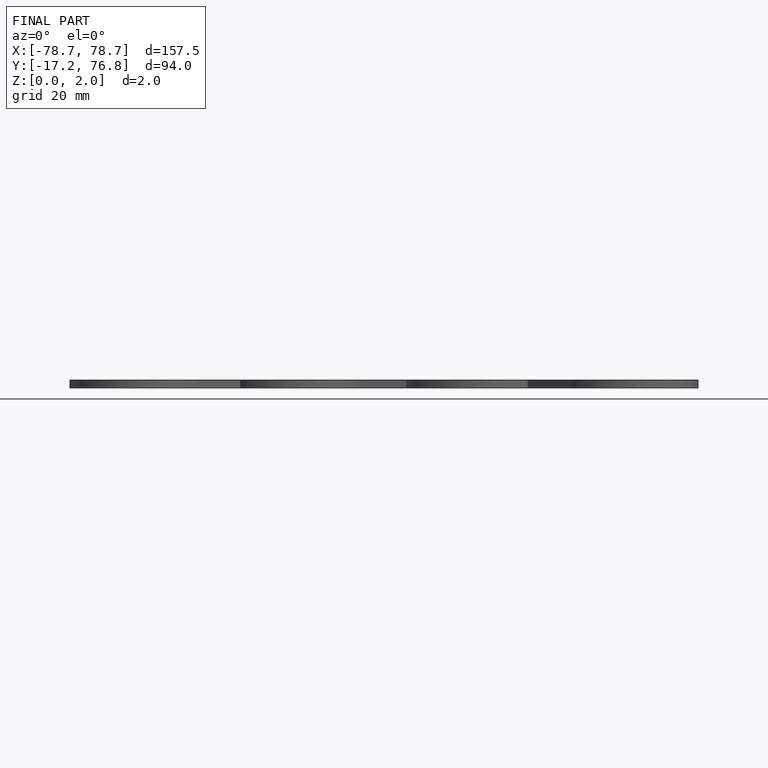
[diagram: finished part — front view with bounding-box wireframe]
